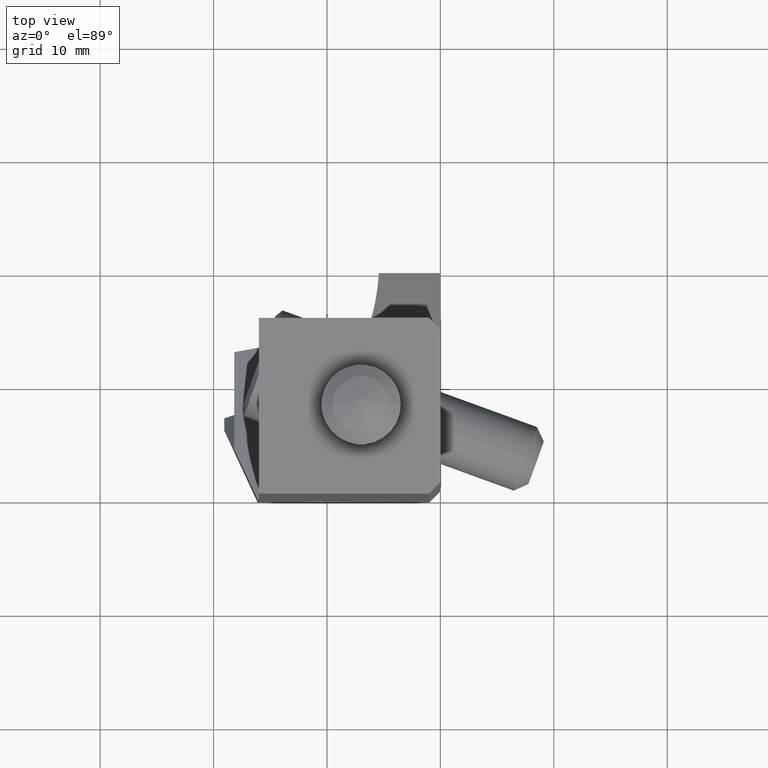
[diagram: clean part render]
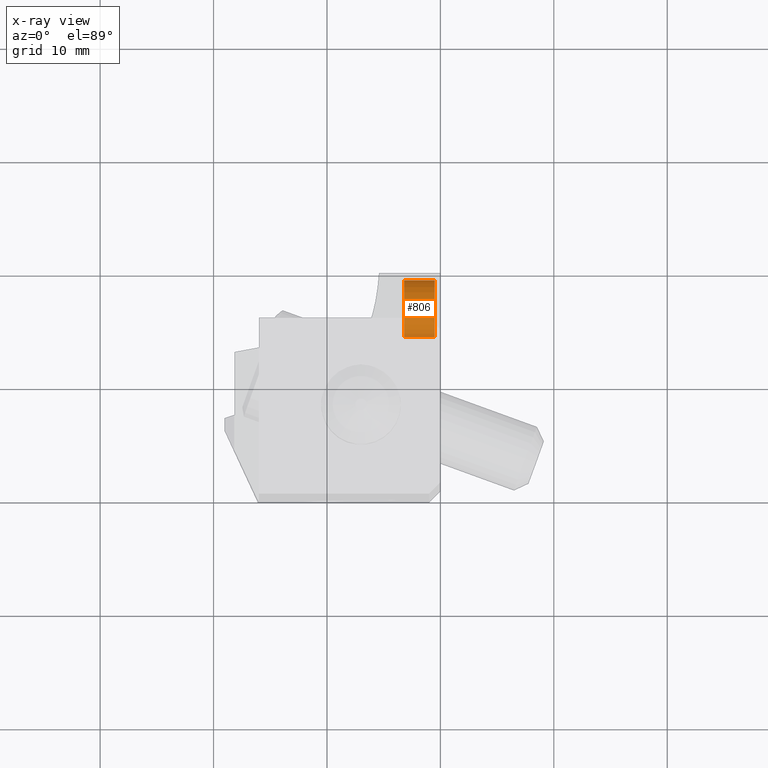
[diagram: x-ray — body ghosted, one internal face saturated and labeled with its STEP entity id]
A machine part, top view, then the same camera in x-ray: the body is ghosted and one INTERNAL B-rep face — a face not visible from any outside direction — is saturated and labeled: STEP entity #806.
In plain terms, the highlighted cylindrical surface (edge-blend (fillet) strip) has radius 2.5 mm, axis along (1, 0, 0).
Its self-contained STEP definition (entity closure, byte-faithful):
#220=CYLINDRICAL_SURFACE('',#4709,2.5);
#373=CIRCLE('',#4706,2.5);
#374=CIRCLE('',#4708,2.5);
#581=FACE_OUTER_BOUND('',#1223,.T.);
#806=ADVANCED_FACE('',(#581),#220,.T.);
#1223=EDGE_LOOP('',(#2323,#2324,#2325,#2326));
#2323=ORIENTED_EDGE('',*,*,#3389,.T.);
#2324=ORIENTED_EDGE('',*,*,#3388,.F.);
#2325=ORIENTED_EDGE('',*,*,#3390,.T.);
#2326=ORIENTED_EDGE('',*,*,#3391,.T.);
#2808=VERTEX_POINT('',#7787);
#2810=VERTEX_POINT('',#7791);
#2811=VERTEX_POINT('',#7797);
#2812=VERTEX_POINT('',#7799);
#3388=EDGE_CURVE('',#2810,#2808,#373,.T.);
#3389=EDGE_CURVE('',#2811,#2808,#3773,.T.);
#3390=EDGE_CURVE('',#2810,#2812,#3774,.T.);
#3391=EDGE_CURVE('',#2812,#2811,#374,.T.);
#3773=LINE('',#7796,#4135);
#3774=LINE('',#7798,#4136);
#4135=VECTOR('',#5886,1.);
#4136=VECTOR('',#5887,1.);
#4706=AXIS2_PLACEMENT_3D('',#7794,#5882,#5883);
#4708=AXIS2_PLACEMENT_3D('',#7800,#5888,#5889);
#4709=AXIS2_PLACEMENT_3D('',#7801,#5890,#5891);
#5882=DIRECTION('',(1.,0.,0.));
#5883=DIRECTION('',(0.,0.999999999999999,1.04000141831762E-10));
#5886=DIRECTION('',(1.,-1.901359728094E-13,1.943465964287E-11));
#5887=DIRECTION('',(-1.,-1.881622429879E-13,-4.639580900526E-12));
#5888=DIRECTION('',(1.,0.,0.));
#5889=DIRECTION('',(0.,0.999999999999999,0.));
#5890=DIRECTION('',(1.,0.,0.));
#5891=DIRECTION('',(0.,0.999999999999999,0.));
#7787=CARTESIAN_POINT('',(-0.4999999999966,14.5,-39.9533326278));
#7791=CARTESIAN_POINT('',(-0.4999999999966,19.5,-39.95333262764));
#7794=CARTESIAN_POINT('',(-0.5,17.,-39.95333262775));
#7796=CARTESIAN_POINT('',(-3.200000000003,14.5,-39.95333262785));
#7797=CARTESIAN_POINT('',(-3.2,14.5,-39.95333262775));
#7798=CARTESIAN_POINT('',(-0.4999999999966,19.5,-39.95333262764));
#7799=CARTESIAN_POINT('',(-3.2,19.5,-39.95333262775));
#7800=CARTESIAN_POINT('',(-3.2,17.,-39.95333262775));
#7801=CARTESIAN_POINT('',(-3.254,17.,-39.95333262775));